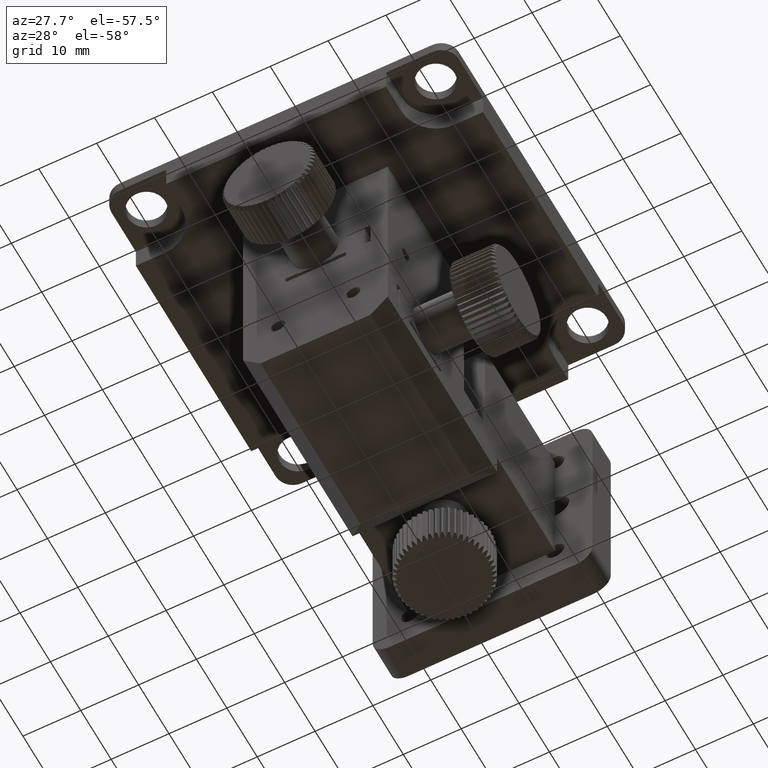
[diagram: clean part render]
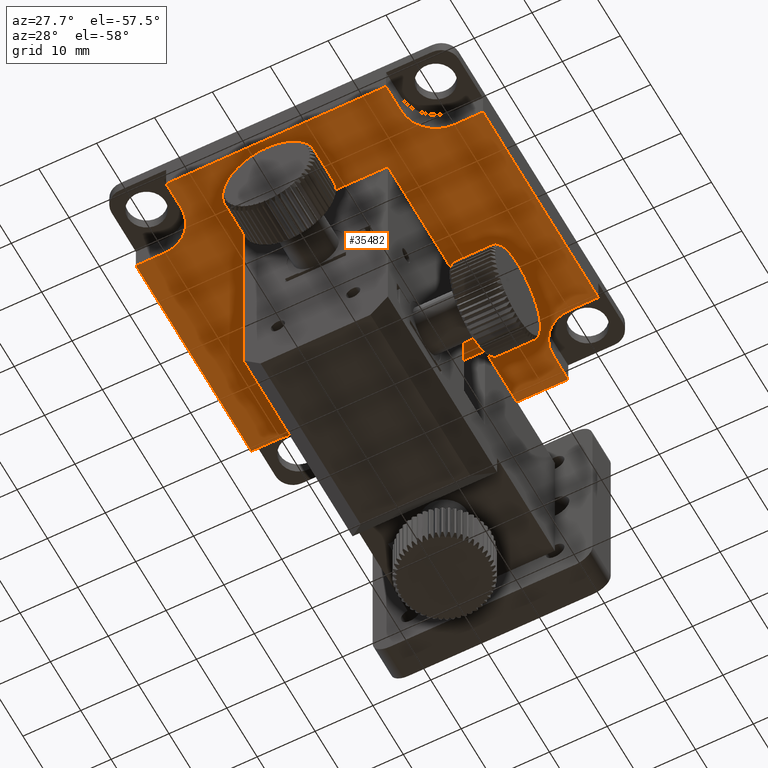
[diagram: same view with one face highlighted and labeled with its STEP entity id]
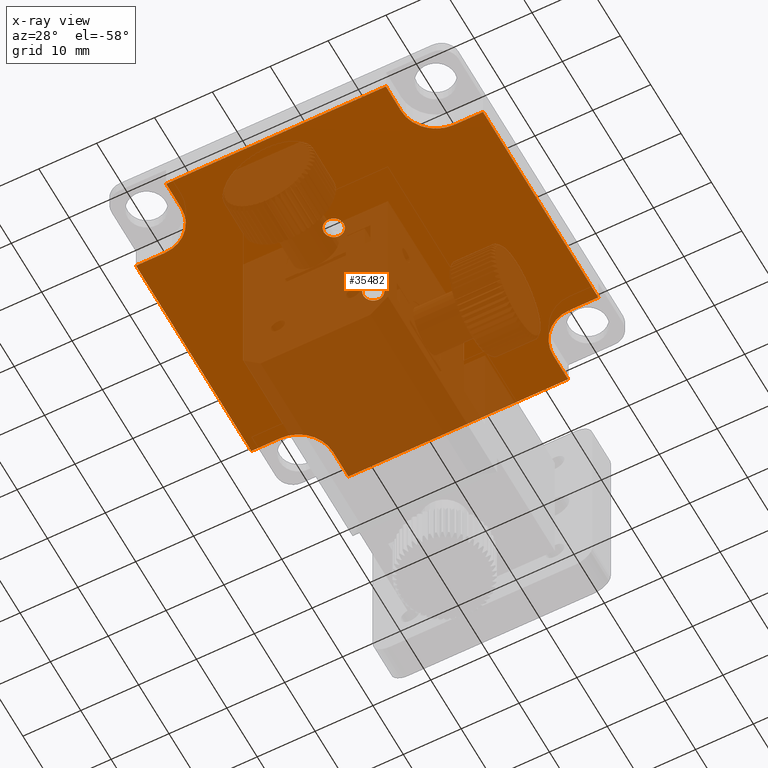
[diagram: x-ray of the same camera — body ghosted, the highlighted face saturated]
A machine part, auxiliary view. The second image highlights one B-rep face of the part: STEP entity #35482.
The next image is the same camera in x-ray: the body ghosted, the highlighted face saturated — about 54% of this face is hidden behind the body in this view.
In plain terms, the highlighted planar face has unit normal (0, 0, 1).
Its self-contained STEP definition (entity closure, byte-faithful):
#306 = CIRCLE ( 'NONE', #2312, 1.699999999999998400 ) ;
#784 = DIRECTION ( 'NONE',  ( 0.0000000000000000000, 0.0000000000000000000, 1.000000000000000000 ) ) ;
#1069 = CARTESIAN_POINT ( 'NONE',  ( -25.00000000000000000, -25.00000000000000000, 0.0000000000000000000 ) ) ;
#1077 = ORIENTED_EDGE ( 'NONE', *, *, #16740, .T. ) ;
#1461 = LINE ( 'NONE', #38329, #12730 ) ;
#2312 = AXIS2_PLACEMENT_3D ( 'NONE', #5982, #6115, #9139 ) ;
#2466 = AXIS2_PLACEMENT_3D ( 'NONE', #38415, #26966, #8443 ) ;
#2517 = VECTOR ( 'NONE', #25517, 1000.000000000000000 ) ;
#2917 = EDGE_CURVE ( 'NONE', #16176, #5515, #25590, .T. ) ;
#2971 = EDGE_CURVE ( 'NONE', #36194, #16920, #28860, .T. ) ;
#3283 = CARTESIAN_POINT ( 'NONE',  ( 25.00000000000000000, -19.00000000000000400, -0.0000000000000000000 ) ) ;
#3391 = FACE_BOUND ( 'NONE', #18254, .T. ) ;
#3483 = VERTEX_POINT ( 'NONE', #14571 ) ;
#3771 = LINE ( 'NONE', #38466, #34706 ) ;
#3888 = CARTESIAN_POINT ( 'NONE',  ( 1.699999999999998400, 2.000000000000000000, 8.673617379884035500E-016 ) ) ;
#4254 = VERTEX_POINT ( 'NONE', #15897 ) ;
#4889 = CARTESIAN_POINT ( 'NONE',  ( 32.95339448999357000, -19.00000000000000400, -0.0000000000000000000 ) ) ;
#4921 = EDGE_LOOP ( 'NONE', ( #34634, #15386 ) ) ;
#4985 = CARTESIAN_POINT ( 'NONE',  ( -19.00000000000000400, -25.00000000000000000, 0.0000000000000000000 ) ) ;
#5448 = DIRECTION ( 'NONE',  ( -1.000000000000000000, 0.0000000000000000000, 0.0000000000000000000 ) ) ;
#5515 = VERTEX_POINT ( 'NONE', #19201 ) ;
#5673 = EDGE_CURVE ( 'NONE', #34128, #34464, #306, .T. ) ;
#5875 = DIRECTION ( 'NONE',  ( 1.000000000000000000, -2.312964634635743400E-016, 0.0000000000000000000 ) ) ;
#5924 = CARTESIAN_POINT ( 'NONE',  ( 19.00000000000000400, 39.82608991150255000, 0.0000000000000000000 ) ) ;
#5982 = CARTESIAN_POINT ( 'NONE',  ( 0.0000000000000000000, 2.000000000000000000, 8.673617379884035500E-016 ) ) ;
#6115 = DIRECTION ( 'NONE',  ( -0.0000000000000000000, -0.0000000000000000000, 1.000000000000000000 ) ) ;
#6266 = CARTESIAN_POINT ( 'NONE',  ( -19.00000000000000000, 30.00000000000000000, 0.0000000000000000000 ) ) ;
#6374 = VECTOR ( 'NONE', #5448, 1000.000000000000000 ) ;
#6705 = CARTESIAN_POINT ( 'NONE',  ( -25.00000000000000000, 19.00000000000000400, 0.0000000000000000000 ) ) ;
#6796 = VERTEX_POINT ( 'NONE', #11306 ) ;
#7263 = EDGE_CURVE ( 'NONE', #35362, #36194, #11430, .T. ) ;
#7319 = DIRECTION ( 'NONE',  ( -0.0000000000000000000, -0.0000000000000000000, 1.000000000000000000 ) ) ;
#7453 = CARTESIAN_POINT ( 'NONE',  ( 25.00000000000000000, -25.00000000000000000, 0.0000000000000000000 ) ) ;
#7823 = ORIENTED_EDGE ( 'NONE', *, *, #28067, .F. ) ;
#7825 = CARTESIAN_POINT ( 'NONE',  ( 18.99999999999999600, -25.00000000000000000, -0.0000000000000000000 ) ) ;
#8443 = DIRECTION ( 'NONE',  ( -1.000000000000000000, 0.0000000000000000000, 0.0000000000000000000 ) ) ;
#8643 = CARTESIAN_POINT ( 'NONE',  ( 0.0000000000000000000, -11.00000000000000000, 8.673617379884035500E-016 ) ) ;
#9056 = EDGE_CURVE ( 'NONE', #38783, #17769, #23141, .T. ) ;
#9139 = DIRECTION ( 'NONE',  ( 1.000000000000000000, 0.0000000000000000000, 0.0000000000000000000 ) ) ;
#9294 = VERTEX_POINT ( 'NONE', #19809 ) ;
#9368 = VERTEX_POINT ( 'NONE', #26410 ) ;
#9812 = EDGE_CURVE ( 'NONE', #18018, #3483, #26787, .T. ) ;
#11081 = EDGE_CURVE ( 'NONE', #36013, #37769, #22510, .T. ) ;
#11306 = CARTESIAN_POINT ( 'NONE',  ( -29.99999999999999300, -19.00000000000000400, 0.0000000000000000000 ) ) ;
#11430 = CIRCLE ( 'NONE', #35220, 5.999999999999998200 ) ;
#11563 = EDGE_CURVE ( 'NONE', #16920, #4254, #27585, .T. ) ;
#12730 = VECTOR ( 'NONE', #26498, 1000.000000000000000 ) ;
#13006 = DIRECTION ( 'NONE',  ( -1.000000000000000000, 0.0000000000000000000, 0.0000000000000000000 ) ) ;
#13043 = EDGE_CURVE ( 'NONE', #17769, #38783, #22967, .T. ) ;
#13566 = DIRECTION ( 'NONE',  ( -1.014726665337448900E-015, -1.000000000000000000, 0.0000000000000000000 ) ) ;
#13932 = EDGE_LOOP ( 'NONE', ( #7823, #33529, #19760, #28731, #22575, #23977, #22506, #32401, #33366, #36034, #26348, #35676, #22413, #26866, #25783, #30334 ) ) ;
#14042 = CARTESIAN_POINT ( 'NONE',  ( 0.0000000000000000000, -11.00000000000000000, 8.673617379884035500E-016 ) ) ;
#14571 = CARTESIAN_POINT ( 'NONE',  ( -19.00000000000000400, 25.00000000000000000, 0.0000000000000000000 ) ) ;
#14828 = CARTESIAN_POINT ( 'NONE',  ( -19.00000000000000400, -30.00000000000000000, 0.0000000000000000000 ) ) ;
#14940 = DIRECTION ( 'NONE',  ( -0.0000000000000000000, 1.000000000000000000, -0.0000000000000000000 ) ) ;
#15386 = ORIENTED_EDGE ( 'NONE', *, *, #13043, .T. ) ;
#15732 = LINE ( 'NONE', #7825, #21808 ) ;
#15897 = CARTESIAN_POINT ( 'NONE',  ( 18.99999999999999600, -30.00000000000001400, 0.0000000000000000000 ) ) ;
#16176 = VERTEX_POINT ( 'NONE', #18863 ) ;
#16247 = DIRECTION ( 'NONE',  ( -1.000000000000000000, 0.0000000000000000000, 0.0000000000000000000 ) ) ;
#16264 = EDGE_CURVE ( 'NONE', #17522, #31952, #25961, .T. ) ;
#16323 = LINE ( 'NONE', #32201, #6374 ) ;
#16465 = AXIS2_PLACEMENT_3D ( 'NONE', #7453, #22751, #22366 ) ;
#16740 = EDGE_CURVE ( 'NONE', #34464, #34128, #30608, .T. ) ;
#16920 = VERTEX_POINT ( 'NONE', #14828 ) ;
#16999 = AXIS2_PLACEMENT_3D ( 'NONE', #36245, #784, #24279 ) ;
#17017 = CARTESIAN_POINT ( 'NONE',  ( -18.99999999999999600, 31.83819016582134500, 0.0000000000000000000 ) ) ;
#17522 = VERTEX_POINT ( 'NONE', #3283 ) ;
#17769 = VERTEX_POINT ( 'NONE', #38196 ) ;
#18018 = VERTEX_POINT ( 'NONE', #6266 ) ;
#18028 = DIRECTION ( 'NONE',  ( -0.0000000000000000000, -0.0000000000000000000, 1.000000000000000000 ) ) ;
#18115 = LINE ( 'NONE', #5924, #33537 ) ;
#18219 = AXIS2_PLACEMENT_3D ( 'NONE', #31453, #7319, #19338 ) ;
#18254 = EDGE_LOOP ( 'NONE', ( #1077, #28054 ) ) ;
#18272 = CARTESIAN_POINT ( 'NONE',  ( -29.99999999999999300, -30.00000000000000000, 0.0000000000000000000 ) ) ;
#18863 = CARTESIAN_POINT ( 'NONE',  ( 25.00000000000000000, 19.00000000000000400, 0.0000000000000000000 ) ) ;
#19201 = CARTESIAN_POINT ( 'NONE',  ( 19.00000000000000400, 25.00000000000000000, 0.0000000000000000000 ) ) ;
#19338 = DIRECTION ( 'NONE',  ( 1.000000000000000000, 0.0000000000000000000, 0.0000000000000000000 ) ) ;
#19445 = LINE ( 'NONE', #34056, #31560 ) ;
#19662 = EDGE_CURVE ( 'NONE', #3483, #36013, #29519, .T. ) ;
#19760 = ORIENTED_EDGE ( 'NONE', *, *, #25080, .F. ) ;
#19809 = CARTESIAN_POINT ( 'NONE',  ( 19.00000000000000000, -25.00000000000000000, 0.0000000000000000000 ) ) ;
#20613 = DIRECTION ( 'NONE',  ( 0.0000000000000000000, -1.000000000000000000, 0.0000000000000000000 ) ) ;
#20756 = DIRECTION ( 'NONE',  ( 1.000000000000000000, 0.0000000000000000000, 0.0000000000000000000 ) ) ;
#20823 = AXIS2_PLACEMENT_3D ( 'NONE', #8643, #18028, #35603 ) ;
#21808 = VECTOR ( 'NONE', #22852, 1000.000000000000000 ) ;
#22098 = DIRECTION ( 'NONE',  ( -0.0000000000000000000, -0.0000000000000000000, -1.000000000000000000 ) ) ;
#22366 = DIRECTION ( 'NONE',  ( -1.000000000000000000, 0.0000000000000000000, 0.0000000000000000000 ) ) ;
#22413 = ORIENTED_EDGE ( 'NONE', *, *, #31517, .F. ) ;
#22498 = EDGE_CURVE ( 'NONE', #6796, #35362, #1461, .T. ) ;
#22506 = ORIENTED_EDGE ( 'NONE', *, *, #7263, .F. ) ;
#22510 = LINE ( 'NONE', #6705, #23895 ) ;
#22575 = ORIENTED_EDGE ( 'NONE', *, *, #11563, .F. ) ;
#22751 = DIRECTION ( 'NONE',  ( -0.0000000000000000000, -0.0000000000000000000, -1.000000000000000000 ) ) ;
#22852 = DIRECTION ( 'NONE',  ( -0.0000000000000000000, 1.000000000000000000, -0.0000000000000000000 ) ) ;
#22934 = AXIS2_PLACEMENT_3D ( 'NONE', #14042, #31811, #20756 ) ;
#22967 = CIRCLE ( 'NONE', #22934, 1.699999999999998400 ) ;
#23141 = CIRCLE ( 'NONE', #20823, 1.699999999999998400 ) ;
#23895 = VECTOR ( 'NONE', #24199, 1000.000000000000000 ) ;
#23977 = ORIENTED_EDGE ( 'NONE', *, *, #2971, .F. ) ;
#24199 = DIRECTION ( 'NONE',  ( -1.000000000000000000, 0.0000000000000000000, 0.0000000000000000000 ) ) ;
#24279 = DIRECTION ( 'NONE',  ( 1.000000000000000000, 0.0000000000000000000, -0.0000000000000000000 ) ) ;
#24528 = FACE_OUTER_BOUND ( 'NONE', #13932, .T. ) ;
#25080 = EDGE_CURVE ( 'NONE', #9294, #17522, #37768, .T. ) ;
#25420 = VECTOR ( 'NONE', #13566, 1000.000000000000000 ) ;
#25517 = DIRECTION ( 'NONE',  ( 1.000000000000000000, -0.0000000000000000000, -0.0000000000000000000 ) ) ;
#25590 = CIRCLE ( 'NONE', #2466, 5.999999999999998200 ) ;
#25743 = EDGE_CURVE ( 'NONE', #36612, #16176, #16323, .T. ) ;
#25783 = ORIENTED_EDGE ( 'NONE', *, *, #2917, .F. ) ;
#25961 = LINE ( 'NONE', #4889, #2517 ) ;
#26161 = LINE ( 'NONE', #33411, #30354 ) ;
#26229 = DIRECTION ( 'NONE',  ( 0.0000000000000000000, -1.000000000000000000, 0.0000000000000000000 ) ) ;
#26348 = ORIENTED_EDGE ( 'NONE', *, *, #19662, .F. ) ;
#26366 = EDGE_CURVE ( 'NONE', #5515, #9368, #18115, .T. ) ;
#26395 = FACE_BOUND ( 'NONE', #4921, .T. ) ;
#26410 = CARTESIAN_POINT ( 'NONE',  ( 19.00000000000000400, 30.00000000000001800, 0.0000000000000000000 ) ) ;
#26498 = DIRECTION ( 'NONE',  ( 1.000000000000000000, -0.0000000000000000000, -0.0000000000000000000 ) ) ;
#26787 = LINE ( 'NONE', #17017, #25420 ) ;
#26866 = ORIENTED_EDGE ( 'NONE', *, *, #26366, .F. ) ;
#26966 = DIRECTION ( 'NONE',  ( -0.0000000000000000000, -0.0000000000000000000, -1.000000000000000000 ) ) ;
#27283 = EDGE_CURVE ( 'NONE', #4254, #9294, #15732, .T. ) ;
#27585 = LINE ( 'NONE', #18272, #29443 ) ;
#27671 = DIRECTION ( 'NONE',  ( -0.0000000000000000000, 1.000000000000000000, -0.0000000000000000000 ) ) ;
#27960 = DIRECTION ( 'NONE',  ( -0.0000000000000000000, -0.0000000000000000000, -1.000000000000000000 ) ) ;
#28054 = ORIENTED_EDGE ( 'NONE', *, *, #5673, .T. ) ;
#28067 = EDGE_CURVE ( 'NONE', #31952, #36612, #26161, .T. ) ;
#28211 = CARTESIAN_POINT ( 'NONE',  ( -25.00000000000000000, 25.00000000000000000, 0.0000000000000000000 ) ) ;
#28369 = VECTOR ( 'NONE', #20613, 1000.000000000000000 ) ;
#28731 = ORIENTED_EDGE ( 'NONE', *, *, #27283, .F. ) ;
#28777 = AXIS2_PLACEMENT_3D ( 'NONE', #28211, #27960, #16247 ) ;
#28860 = LINE ( 'NONE', #38683, #28369 ) ;
#29443 = VECTOR ( 'NONE', #5875, 1000.000000000000000 ) ;
#29519 = CIRCLE ( 'NONE', #28777, 5.999999999999998200 ) ;
#29721 = CARTESIAN_POINT ( 'NONE',  ( 29.99999999999999300, -19.00000000000000400, 0.0000000000000000000 ) ) ;
#29753 = CARTESIAN_POINT ( 'NONE',  ( -25.00000000000000000, -19.00000000000000400, 0.0000000000000000000 ) ) ;
#30312 = CARTESIAN_POINT ( 'NONE',  ( -25.00000000000000000, 19.00000000000000400, 0.0000000000000000000 ) ) ;
#30334 = ORIENTED_EDGE ( 'NONE', *, *, #25743, .F. ) ;
#30354 = VECTOR ( 'NONE', #27671, 1000.000000000000000 ) ;
#30608 = CIRCLE ( 'NONE', #18219, 1.699999999999998400 ) ;
#30672 = DIRECTION ( 'NONE',  ( -1.000000000000000000, -2.312964634635743400E-016, -0.0000000000000000000 ) ) ;
#31453 = CARTESIAN_POINT ( 'NONE',  ( 0.0000000000000000000, 2.000000000000000000, 8.673617379884035500E-016 ) ) ;
#31517 = EDGE_CURVE ( 'NONE', #9368, #18018, #19445, .T. ) ;
#31560 = VECTOR ( 'NONE', #30672, 1000.000000000000000 ) ;
#31811 = DIRECTION ( 'NONE',  ( -0.0000000000000000000, -0.0000000000000000000, 1.000000000000000000 ) ) ;
#31952 = VERTEX_POINT ( 'NONE', #29721 ) ;
#32201 = CARTESIAN_POINT ( 'NONE',  ( 43.56196502781983800, 19.00000000000000400, 0.0000000000000000000 ) ) ;
#32401 = ORIENTED_EDGE ( 'NONE', *, *, #22498, .F. ) ;
#33272 = PLANE ( 'NONE',  #16999 ) ;
#33366 = ORIENTED_EDGE ( 'NONE', *, *, #36332, .F. ) ;
#33411 = CARTESIAN_POINT ( 'NONE',  ( 29.99999999999999300, 30.00000000000001400, 0.0000000000000000000 ) ) ;
#33529 = ORIENTED_EDGE ( 'NONE', *, *, #16264, .F. ) ;
#33537 = VECTOR ( 'NONE', #14940, 1000.000000000000000 ) ;
#34056 = CARTESIAN_POINT ( 'NONE',  ( -29.99999999999999300, 30.00000000000000000, 0.0000000000000000000 ) ) ;
#34128 = VERTEX_POINT ( 'NONE', #34429 ) ;
#34429 = CARTESIAN_POINT ( 'NONE',  ( -1.699999999999998400, 2.000000000000000000, 8.673617379884035500E-016 ) ) ;
#34464 = VERTEX_POINT ( 'NONE', #3888 ) ;
#34634 = ORIENTED_EDGE ( 'NONE', *, *, #9056, .T. ) ;
#34706 = VECTOR ( 'NONE', #26229, 1000.000000000000000 ) ;
#35068 = CARTESIAN_POINT ( 'NONE',  ( 1.699999999999998400, -11.00000000000000000, 8.673617379884035500E-016 ) ) ;
#35220 = AXIS2_PLACEMENT_3D ( 'NONE', #1069, #22098, #13006 ) ;
#35362 = VERTEX_POINT ( 'NONE', #29753 ) ;
#35482 = ADVANCED_FACE ( 'NONE', ( #3391, #26395, #24528 ), #33272, .F. ) ;
#35603 = DIRECTION ( 'NONE',  ( 1.000000000000000000, 0.0000000000000000000, 0.0000000000000000000 ) ) ;
#35676 = ORIENTED_EDGE ( 'NONE', *, *, #9812, .F. ) ;
#36013 = VERTEX_POINT ( 'NONE', #30312 ) ;
#36034 = ORIENTED_EDGE ( 'NONE', *, *, #11081, .F. ) ;
#36194 = VERTEX_POINT ( 'NONE', #4985 ) ;
#36245 = CARTESIAN_POINT ( 'NONE',  ( -29.99999999999999300, -30.00000000000000000, 0.0000000000000000000 ) ) ;
#36332 = EDGE_CURVE ( 'NONE', #37769, #6796, #3771, .T. ) ;
#36612 = VERTEX_POINT ( 'NONE', #36619 ) ;
#36619 = CARTESIAN_POINT ( 'NONE',  ( 29.99999999999999300, 19.00000000000000400, 0.0000000000000000000 ) ) ;
#37768 = CIRCLE ( 'NONE', #16465, 5.999999999999998200 ) ;
#37769 = VERTEX_POINT ( 'NONE', #37923 ) ;
#37923 = CARTESIAN_POINT ( 'NONE',  ( -29.99999999999999300, 19.00000000000000400, 0.0000000000000000000 ) ) ;
#38196 = CARTESIAN_POINT ( 'NONE',  ( -1.699999999999998400, -11.00000000000000000, 8.673617379884035500E-016 ) ) ;
#38329 = CARTESIAN_POINT ( 'NONE',  ( -25.00000000000000000, -19.00000000000000400, 0.0000000000000000000 ) ) ;
#38415 = CARTESIAN_POINT ( 'NONE',  ( 25.00000000000000000, 25.00000000000000000, 0.0000000000000000000 ) ) ;
#38466 = CARTESIAN_POINT ( 'NONE',  ( -29.99999999999999300, 30.00000000000000000, 0.0000000000000000000 ) ) ;
#38683 = CARTESIAN_POINT ( 'NONE',  ( -19.00000000000000400, -25.00000000000000000, 0.0000000000000000000 ) ) ;
#38783 = VERTEX_POINT ( 'NONE', #35068 ) ;